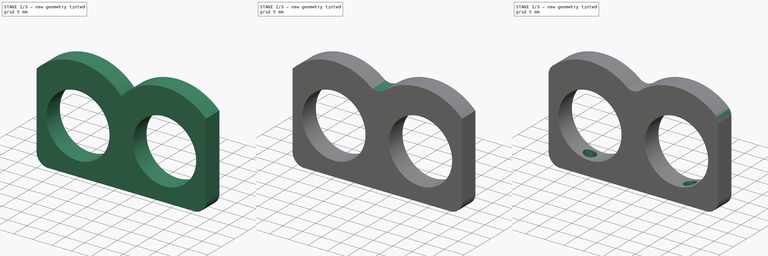
[diagram: build sequence overview — one tinted view per stage of 3, left to right]
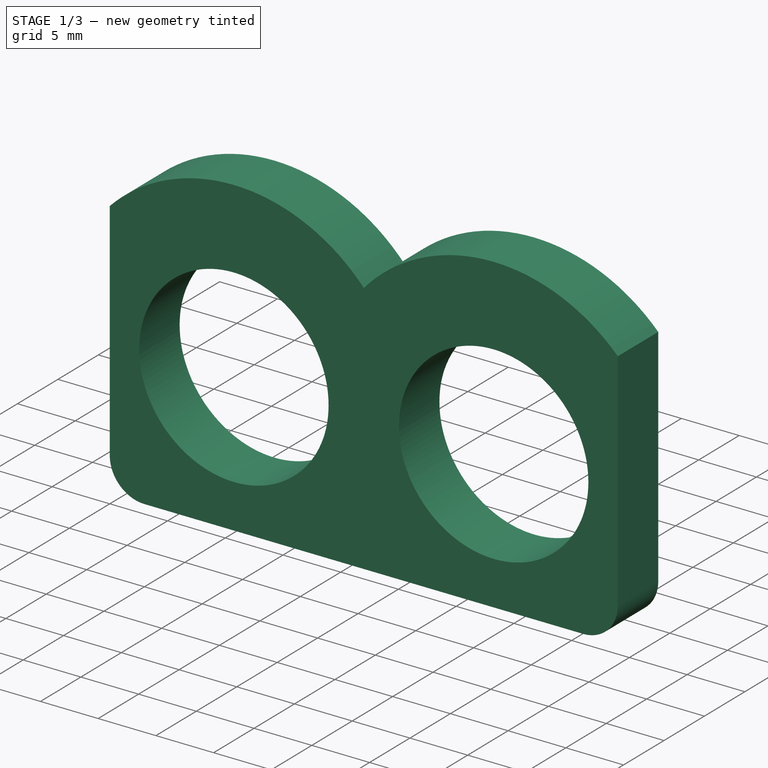
[diagram: stage 1 of 3 — iso view after this stage's code; geometry added in this stage tinted green]
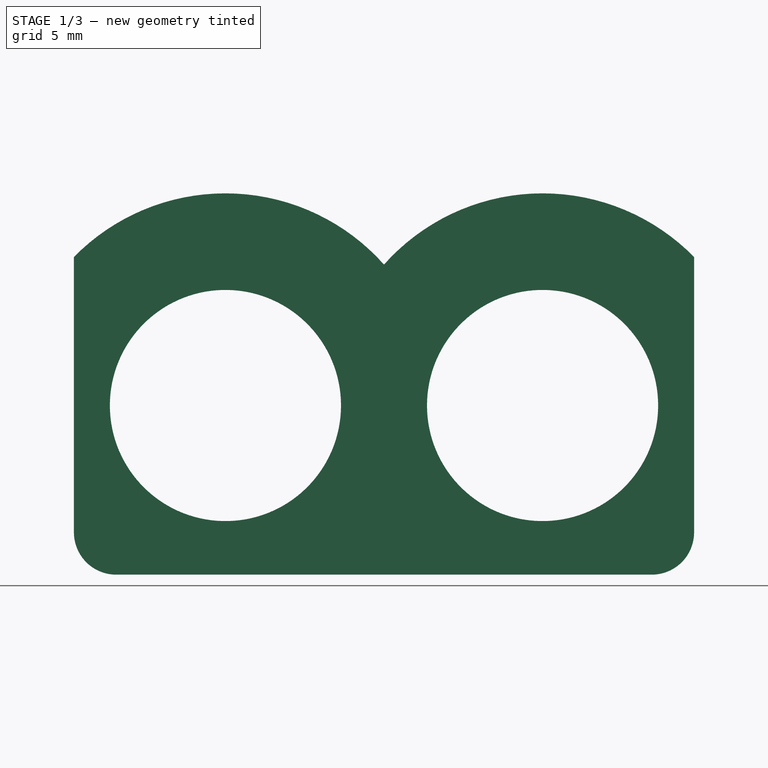
[diagram: stage 1 of 3 — front view after this stage's code; geometry added in this stage tinted green]
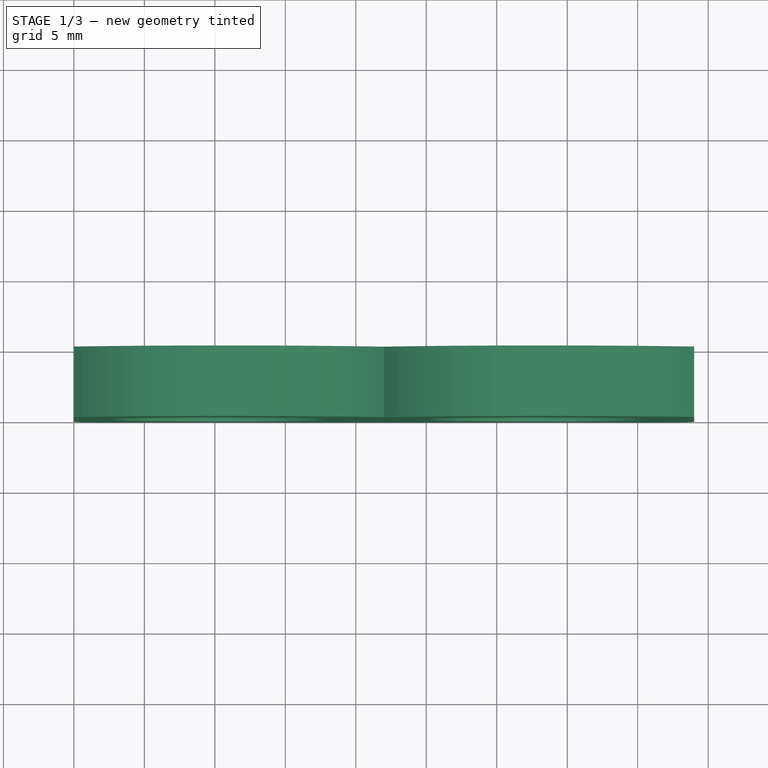
[diagram: stage 1 of 3 — top view after this stage's code; geometry added in this stage tinted green]
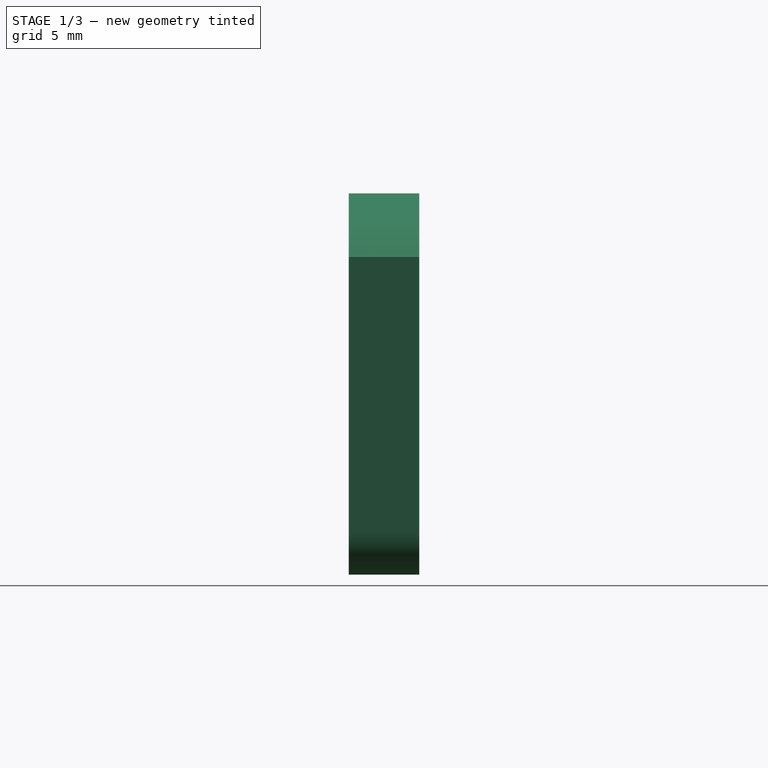
[diagram: stage 1 of 3 — right view after this stage's code; geometry added in this stage tinted green]
FCSTD DOCUMENT  (FreeCAD 0.16R6712 (Git))
Label: SRF05Holder
License: All rights reserved
LicenseURL: http://en.wikipedia.org/wiki/All_rights_reserved
objects: PartDesign::Fillet×3, Sketcher::SketchObject×2, PartDesign::Pad×1, App::MeasureDistance×1, PartDesign::Pocket×1
note: 9 computed .brp shape members not serialized (recipe doc carries the construction recipe); baked Part::Feature solids carry a one-line shape summary decoded from their .brp

FEATURE [Sketcher::SketchObject] Sketch
  Placement = pos=(0,0,0) rot=(1,0,0;1.5708rad)
  sketch-geometry (11):
    g0: LineSegment StartX=0 StartY=0 StartZ=0 EndX=44 EndY=0 EndZ=0
    g1: LineSegment StartX=0 StartY=0 StartZ=0 EndX=0 EndY=22.5357 EndZ=0
    g2: LineSegment StartX=44 StartY=0 StartZ=0 EndX=44 EndY=22.5357 EndZ=0
    g3: Circle CenterX=10.75 CenterY=12 CenterZ=0 NormalX=0 NormalY=0 NormalZ=1 Radius=8.2
    g4: Circle CenterX=33.25 CenterY=12 CenterZ=0 NormalX=0 NormalY=0 NormalZ=1 Radius=8.2
    g5: LineSegment [constr] StartX=22 StartY=0 StartZ=0 EndX=22 EndY=12 EndZ=0
    g6: LineSegment [constr] StartX=22 StartY=12 StartZ=0 EndX=10.75 EndY=12 EndZ=0
    g7: LineSegment [constr] StartX=22 StartY=12 StartZ=0 EndX=33.25 EndY=12 EndZ=0
    g8: LineSegment [constr] StartX=22 StartY=12 StartZ=0 EndX=22 EndY=22 EndZ=0
    g9: ArcOfCircle CenterX=10.75 CenterY=12 CenterZ=0 NormalX=0 NormalY=0 NormalZ=1 Radius=15.052 StartAngle=0.726642 EndAngle=2.36626
    g10: ArcOfCircle CenterX=33.25 CenterY=12 CenterZ=0 NormalX=0 NormalY=0 NormalZ=1 Radius=15.052 StartAngle=0.775329 EndAngle=2.41495
  constraints (32):
    c: Coincident(g0,g-1)
    c: Horizontal(g0)
    c: Coincident(g1,g-1)
    c: Vertical(g1)
    c: Coincident(g2,g0)
    c: Vertical(g2)
    c: DistanceX(g0,g0) = 44
    c: Equal(g1,g2)
    c: Equal(g3,g4)
    c: Radius(g3) = 8.2
    c: PointOnObject(g5,g0)
    c: Vertical(g5)
    c: DistanceX(g-1,g5) = 22
    c: DistanceY(g0,g5) = 12
    c: Coincident(g6,g5)
    c: Coincident(g6,g3)
    c: Coincident(g7,g5)
    c: Coincident(g7,g4)
    c: Horizontal(g7)
    c: Horizontal(g6)
    c: Equal(g6,g7)
    c: DistanceX(g3,g4) = 22.5
    c: Coincident(g8,g5)
    c: Vertical(g8)
    c: DistanceY(g8,g8) = 10
    c: Coincident(g9,g3)
    c: Coincident(g9,g8)
    c: PointOnObject(g9,g-2)
    c: Coincident(g1,g9)
    c: Coincident(g10,g4)
    c: Coincident(g10,g8)
    c: Coincident(g10,g2)
FEATURE [PartDesign::Pad] Pad
  Length = 5
  Length2 = 100
  Placement = pos=(0,0,0) rot=(1,0,0;1.5708rad)
  Sketch = -> Sketch
  Type = 0
FEATURE [PartDesign::Fillet] Fillet
  Base = -> Pad [Edge1,Edge2]
  Placement = pos=(0,0,0) rot=(1,0,0;1.5708rad)
  Radius = 3
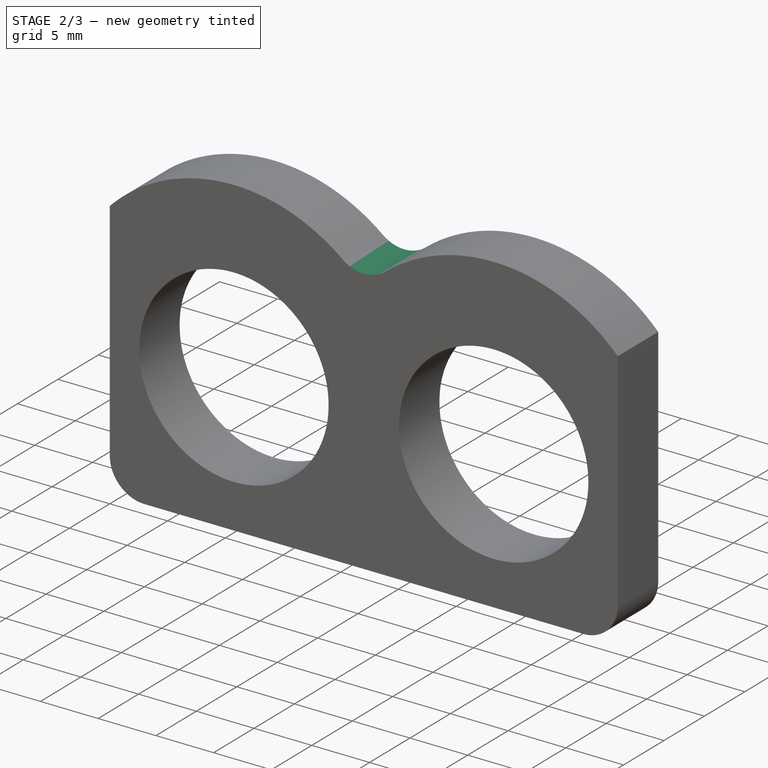
[diagram: stage 2 of 3 — iso view after this stage's code; geometry added in this stage tinted green]
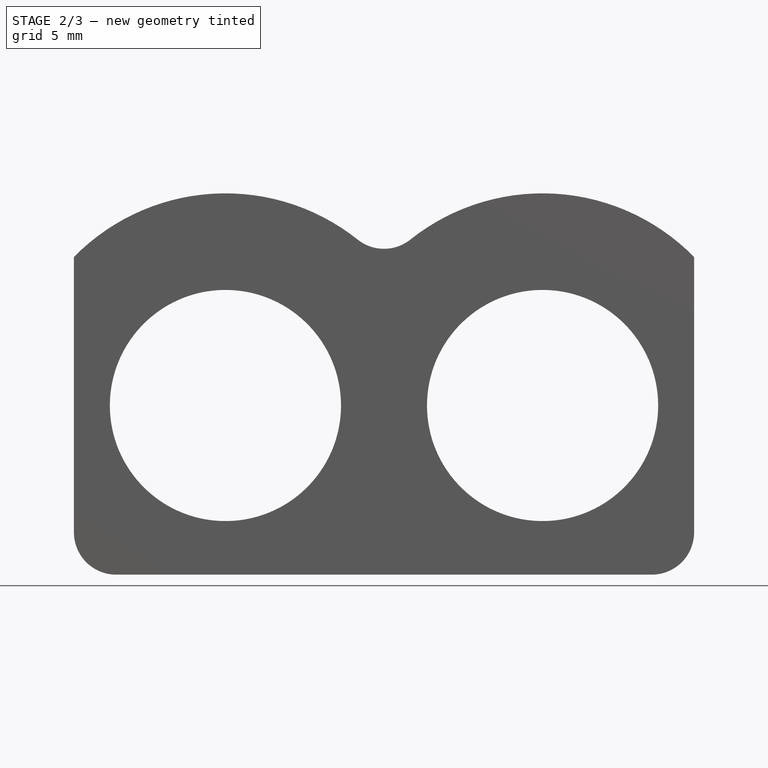
[diagram: stage 2 of 3 — front view after this stage's code; geometry added in this stage tinted green]
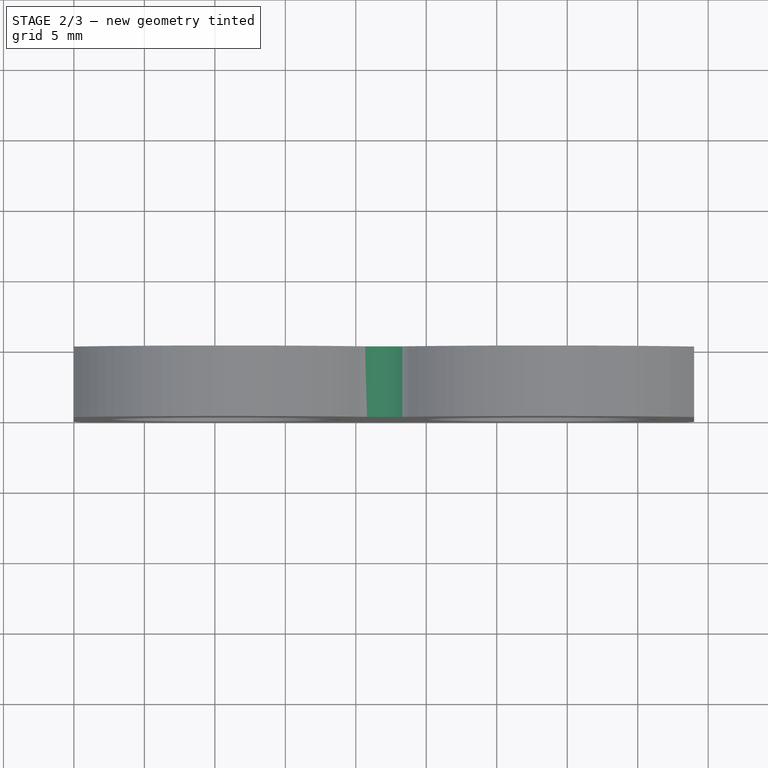
[diagram: stage 2 of 3 — top view after this stage's code; geometry added in this stage tinted green]
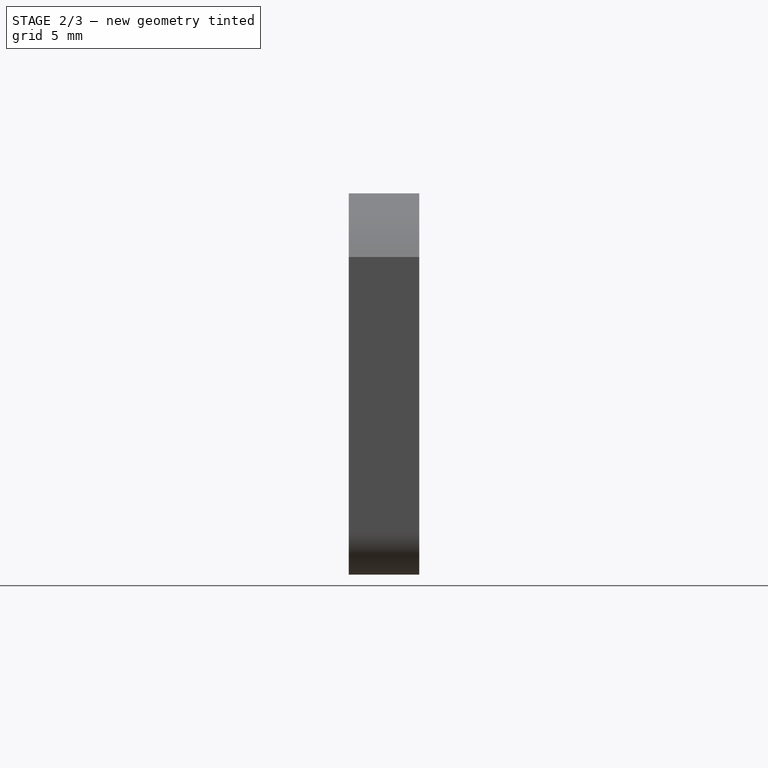
[diagram: stage 2 of 3 — right view after this stage's code; geometry added in this stage tinted green]
FEATURE [PartDesign::Fillet] Fillet001
  Base = -> Fillet [Edge25]
  Placement = pos=(0,0,0) rot=(1,0,0;1.5708rad)
  Radius = 3
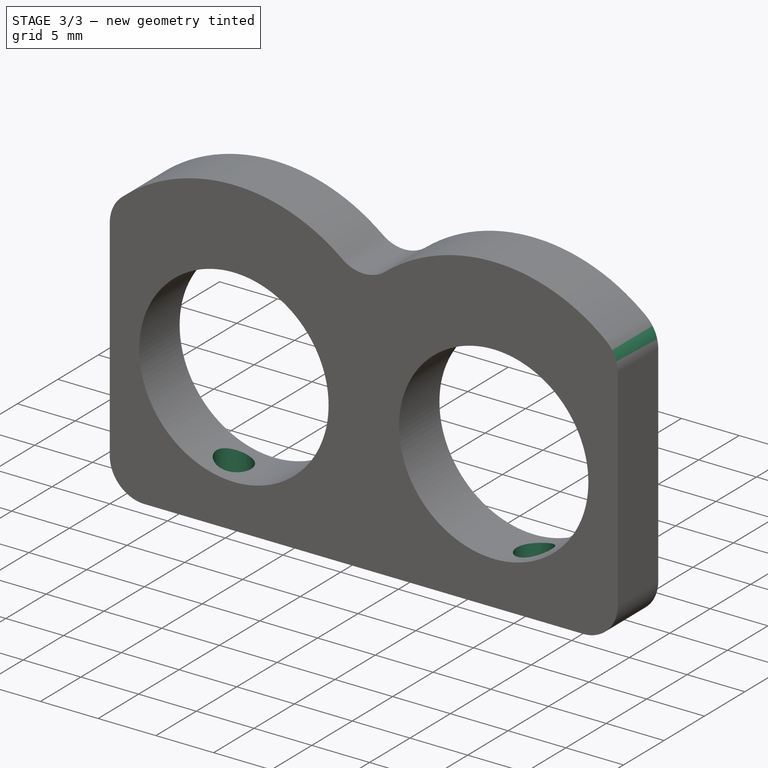
[diagram: stage 3 of 3 — iso view after this stage's code; geometry added in this stage tinted green]
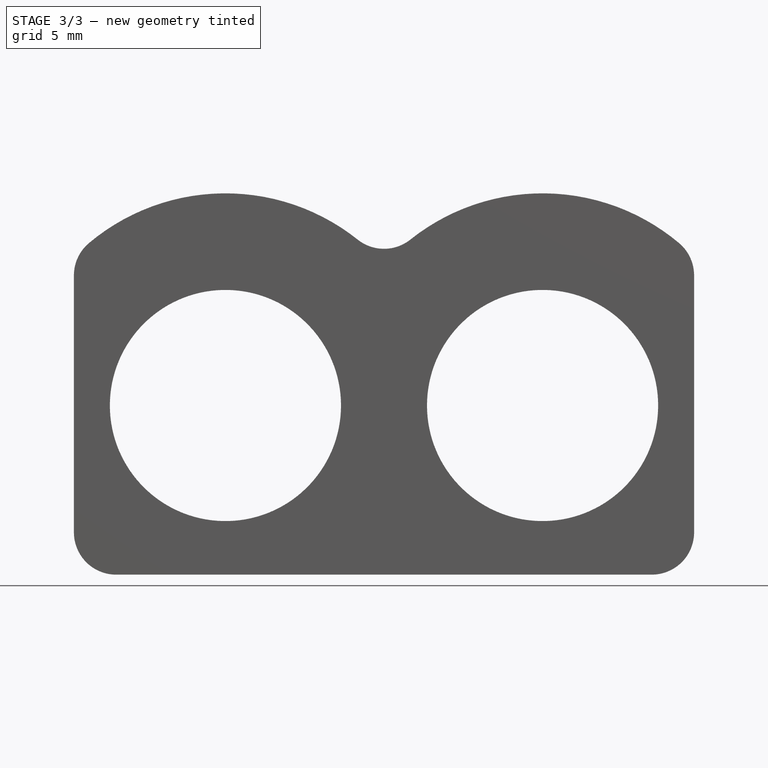
[diagram: stage 3 of 3 — front view after this stage's code; geometry added in this stage tinted green]
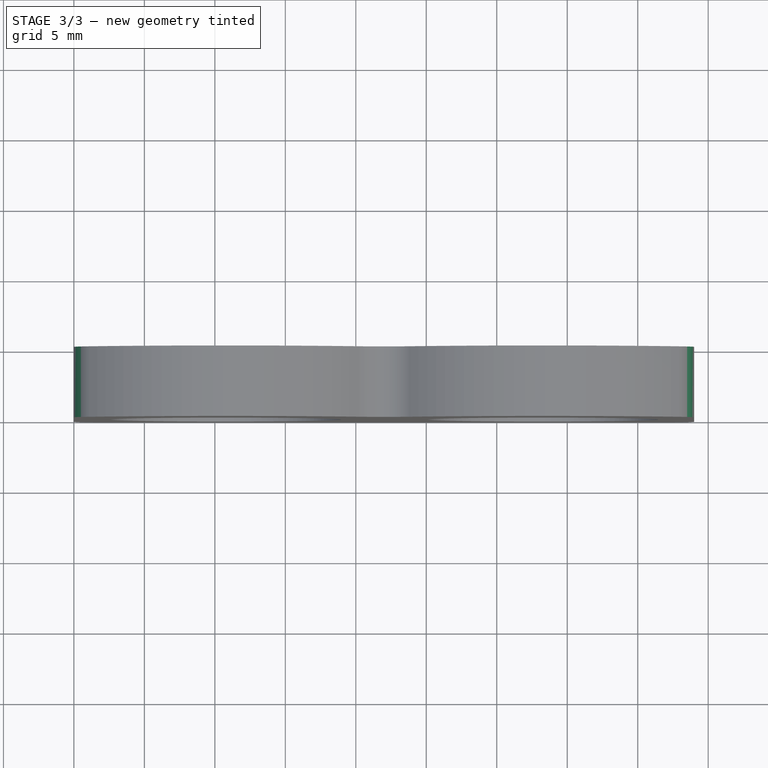
[diagram: stage 3 of 3 — top view after this stage's code; geometry added in this stage tinted green]
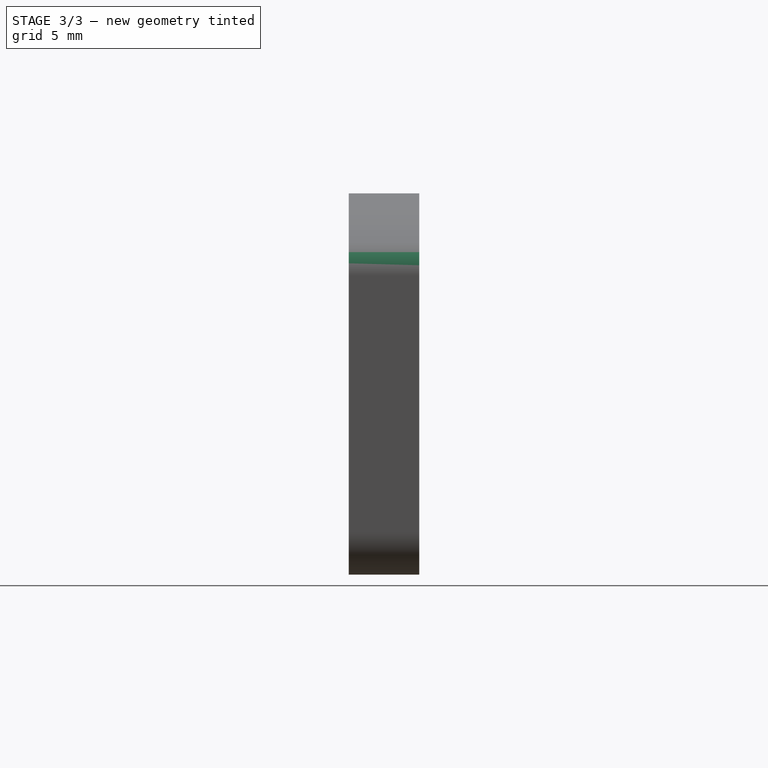
[diagram: stage 3 of 3 — right view after this stage's code; geometry added in this stage tinted green]
FEATURE [PartDesign::Fillet] Fillet002
  Base = -> Fillet001 [Edge18,Edge12]
  Placement = pos=(0,0,0) rot=(1,0,0;1.5708rad)
  Radius = 3
FEATURE [Sketcher::SketchObject] Sketch001
  ExternalGeometry = -> [Fillet002]
  Placement = pos=(0,0,0) rot=(1,0,0;3.14159rad)
  Support = -> Fillet002 [Face9]
  sketch-geometry (3):
    g0: Circle CenterX=9 CenterY=2.5 CenterZ=0 NormalX=0 NormalY=0 NormalZ=1 Radius=1.5
    g1: Circle CenterX=35 CenterY=2.5 CenterZ=0 NormalX=0 NormalY=0 NormalZ=1 Radius=1.5
    g2: Circle CenterX=22 CenterY=2.5 CenterZ=0 NormalX=0 NormalY=0 NormalZ=1 Radius=1.5
  constraints (9):
    c: Equal(g0,g1)
    c: Radius(g0) = 1.5
    c: DistanceX(g-4,g0) = 6
    c: DistanceY(g0,g-4) = 2.5
    c: DistanceY(g1,g-4) = 2.5
    c: DistanceX(g1,g-4) = 6
    c: Equal(g0,g2)
    c: DistanceY(g2,g-4) = 2.5
    c: DistanceX(g-4,g2) = 19
FEATURE [App::MeasureDistance] Distance  label="Distance: 44 mm"
  Distance = 44
  P1 = (0,-5,3.04372)
  P2 = (44,-5,3.01329)
FEATURE [PartDesign::Pocket] Pocket
  Length = 5
  Placement = pos=(0,0,0) rot=(1,0,0;1.5708rad)
  Sketch = -> Sketch001
  Type = 0
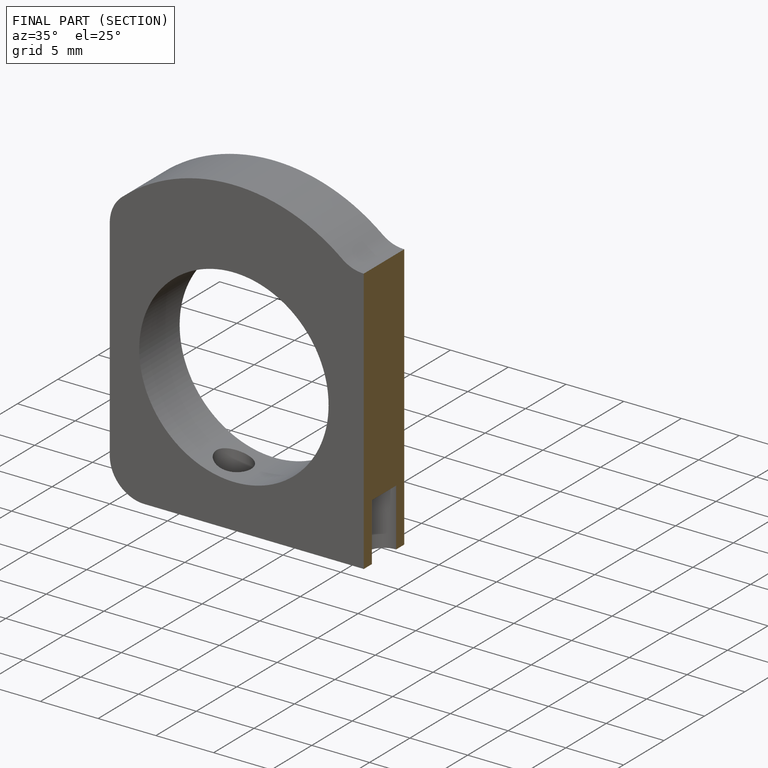
[diagram: finished part — half-section view (interior)]
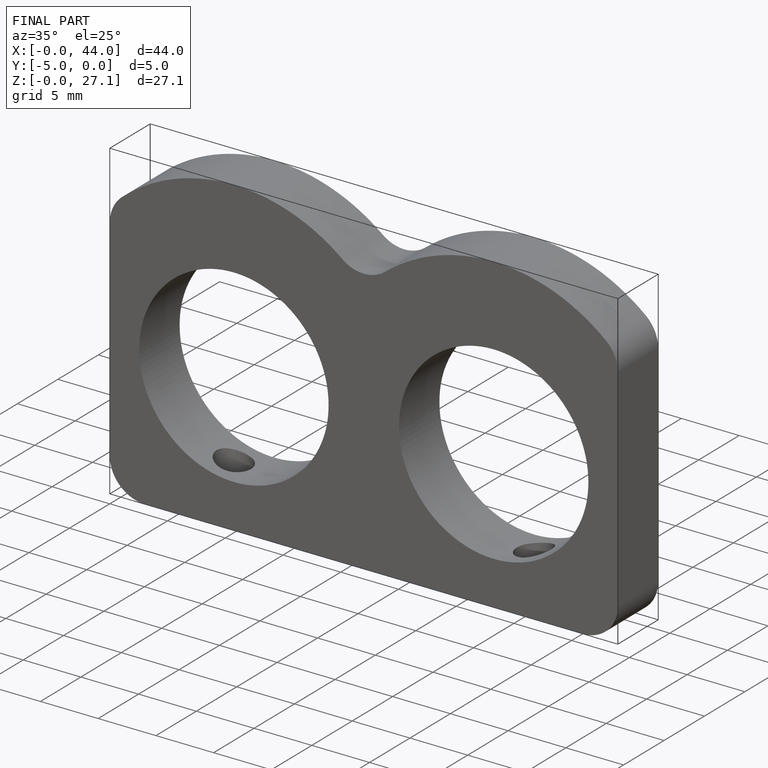
[diagram: finished part — iso view with bounding-box wireframe]
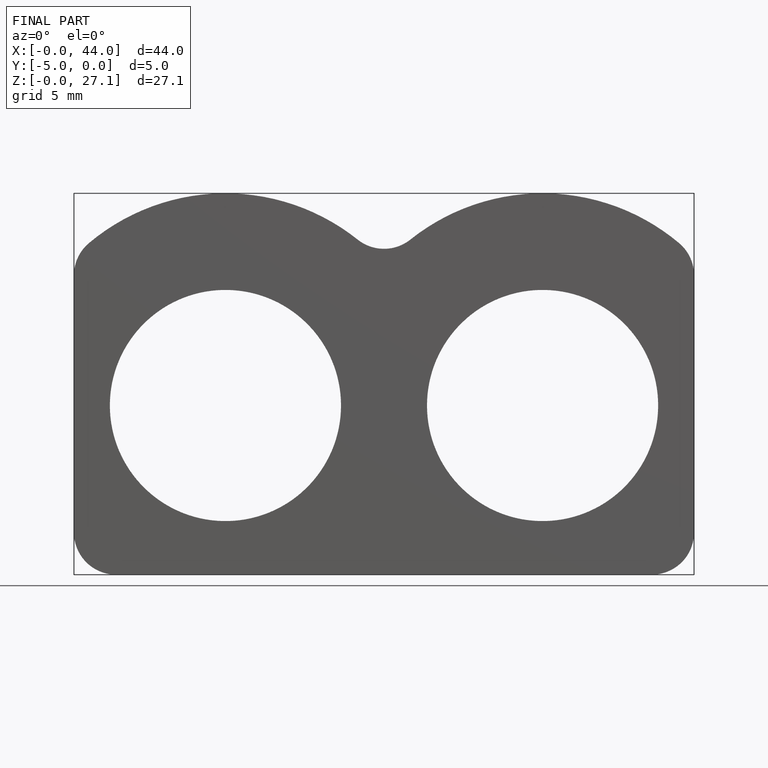
[diagram: finished part — front view with bounding-box wireframe]
